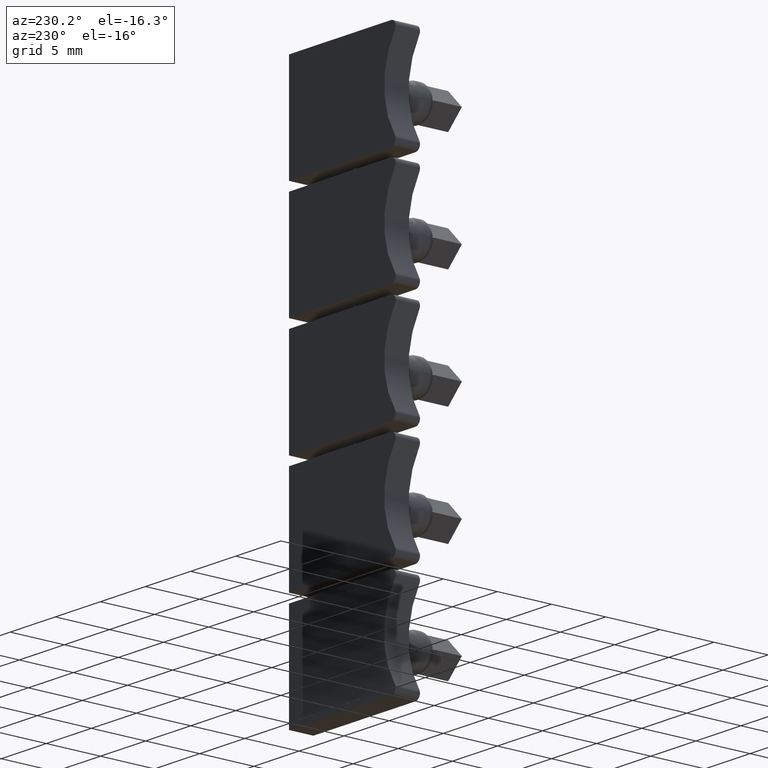
[diagram: clean part render]
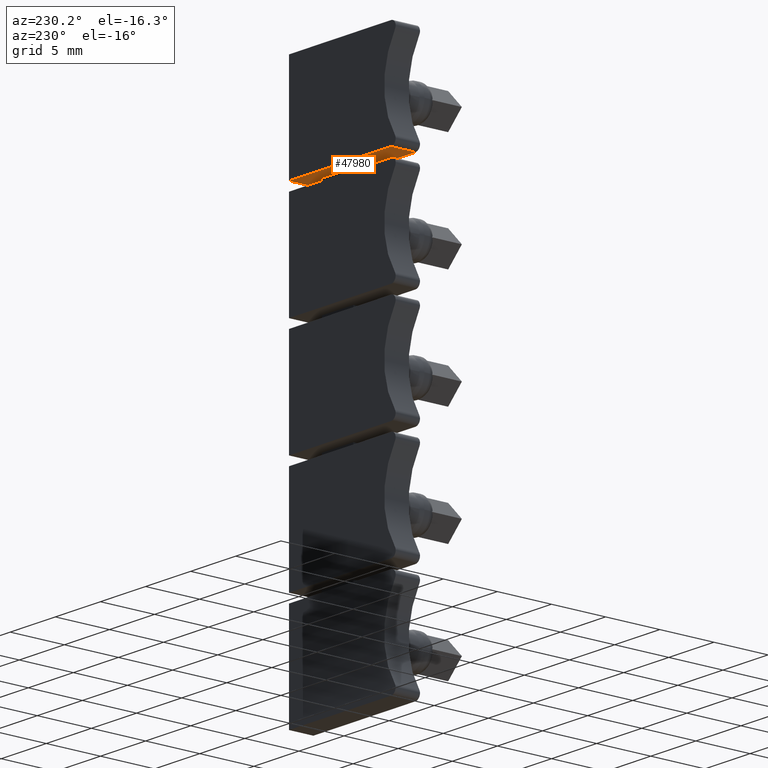
[diagram: same view with one face highlighted and labeled with its STEP entity id]
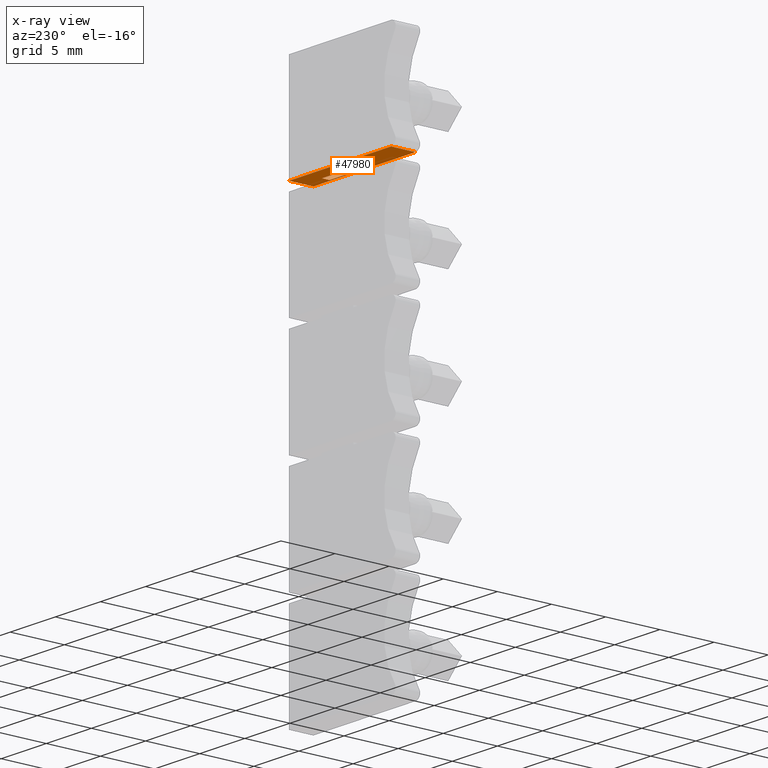
[diagram: x-ray of the same camera — body ghosted, the highlighted face saturated]
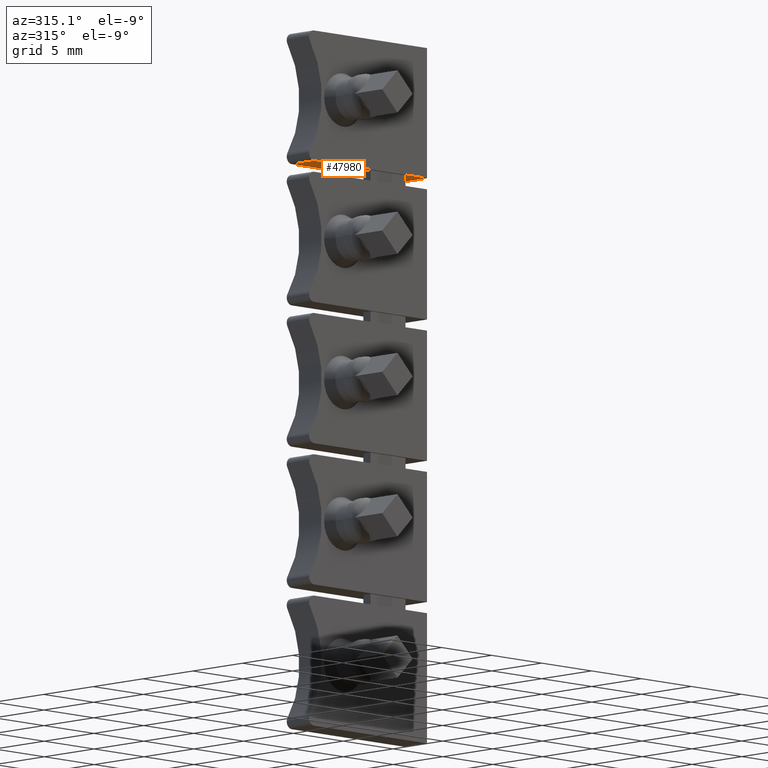
[diagram: same view with one face highlighted and labeled with its STEP entity id]
A machine part, auxiliary view. The second image highlights one B-rep face of the part: STEP entity #47980.
The next image is the same camera in x-ray: the body ghosted, the highlighted face saturated — about 0% of this face is hidden behind the body in this view.
A second angle (auxiliary view) of the same face is appended — the face is thin or edge-on in the first view.
In plain terms, the highlighted planar face has unit normal (0, -0, -1).
Its self-contained STEP definition (entity closure, byte-faithful):
#42920=CARTESIAN_POINT('',(-12.7216167420029,42.8120767804253,
51.0749999972799));
#42930=DIRECTION('',(-4.37360856649983E-12,-1.,0.));
#42940=VECTOR('',#42930,1.);
#42950=LINE('',#42920,#42940);
#42960=CARTESIAN_POINT('',(-12.721616741999,43.6954101153372,
51.0749999972799));
#42970=VERTEX_POINT('',#42960);
#42980=CARTESIAN_POINT('',(-12.7216167420021,42.9787434470838,
51.0749999972799));
#42990=VERTEX_POINT('',#42980);
#43000=EDGE_CURVE('',#42970,#42990,#42950,.T.);
#44760=CARTESIAN_POINT('',(-9.22161674199826,43.6954101153219,
51.0749999972799));
#44770=VERTEX_POINT('',#44760);
#44850=CARTESIAN_POINT('',(-9.2216167420014,42.9787434470685,
51.0749999972799));
#44860=VERTEX_POINT('',#44850);
#44890=CARTESIAN_POINT('',(-9.22161674200213,42.81207678041,
51.0749999972799));
#44900=DIRECTION('',(-4.37360856649983E-12,-1.,0.));
#44910=VECTOR('',#44900,1.);
#44920=LINE('',#44890,#44910);
#44930=EDGE_CURVE('',#44770,#44860,#44920,.T.);
#47430=CARTESIAN_POINT('',(-9.02416052900085,42.8120767804091,
51.0749999972799));
#47440=DIRECTION('',(0.,-0.,-1.));
#47450=DIRECTION('',(1.,-4.37360856649983E-12,0.));
#47460=AXIS2_PLACEMENT_3D('',#47430,#47440,#47450);
#47470=PLANE('',#47460);
#47480=ORIENTED_EDGE('',*,*,#44930,.F.);
#47490=CARTESIAN_POINT('',(-18.2837265971482,42.9787434471081,
51.0749999972799));
#47500=DIRECTION('',(1.,-4.37360856649983E-12,0.));
#47510=VECTOR('',#47500,1.);
#47520=LINE('',#47490,#47510);
#47530=EDGE_CURVE('',#42990,#44860,#47520,.T.);
#47540=ORIENTED_EDGE('',*,*,#47530,.T.);
#47550=ORIENTED_EDGE('',*,*,#43000,.T.);
#47560=CARTESIAN_POINT('',(-18.2837265971451,43.6954101153616,
51.0749999972799));
#47570=DIRECTION('',(-1.,4.37360856649983E-12,0.));
#47580=VECTOR('',#47570,1.);
#47590=LINE('',#47560,#47580);
#47600=EDGE_CURVE('',#44770,#42970,#47590,.T.);
#47610=ORIENTED_EDGE('',*,*,#47600,.T.);
#47620=EDGE_LOOP('',(#47610,#47550,#47540,#47480));
#47630=FACE_BOUND('',#47620,.T.);
#47640=CARTESIAN_POINT('',(-7.22161674200213,42.8120767804012,
51.0749999972799));
#47650=DIRECTION('',(-4.37360856649983E-12,-1.,0.));
#47660=VECTOR('',#47650,1.);
#47670=LINE('',#47640,#47660);
#47680=CARTESIAN_POINT('',(-7.22161674199229,45.0620767804012,
51.0749999972799));
#47690=VERTEX_POINT('',#47680);
#47700=CARTESIAN_POINT('',(-7.22161674200213,42.8120767804012,
51.0749999972799));
#47710=VERTEX_POINT('',#47700);
#47720=EDGE_CURVE('',#47690,#47710,#47670,.T.);
#47730=ORIENTED_EDGE('',*,*,#47720,.T.);
#47740=CARTESIAN_POINT('',(-18.2837265971391,45.0620767804496,
51.0749999972799));
#47750=DIRECTION('',(-1.,4.37360856649983E-12,0.));
#47760=VECTOR('',#47750,1.);
#47770=LINE('',#47740,#47760);
#47780=CARTESIAN_POINT('',(-18.5414452056821,45.0620767804508,
51.0749999972799));
#47790=VERTEX_POINT('',#47780);
#47800=EDGE_CURVE('',#47690,#47790,#47770,.T.);
#47810=ORIENTED_EDGE('',*,*,#47800,.F.);
#47820=CARTESIAN_POINT('',(-18.5414452057228,35.7630743805853,
51.0749999972799));
#47830=DIRECTION('',(4.37360856649983E-12,1.,0.));
#47840=VECTOR('',#47830,1.);
#47850=LINE('',#47820,#47840);
#47860=CARTESIAN_POINT('',(-18.541445205692,42.8120767804508,
51.0749999972799));
#47870=VERTEX_POINT('',#47860);
#47880=EDGE_CURVE('',#47870,#47790,#47850,.T.);
#47890=ORIENTED_EDGE('',*,*,#47880,.T.);
#47900=CARTESIAN_POINT('',(-18.2837265971489,42.8120767804496,
51.0749999972799));
#47910=DIRECTION('',(1.,-4.37360856649983E-12,0.));
#47920=VECTOR('',#47910,1.);
#47930=LINE('',#47900,#47920);
#47940=EDGE_CURVE('',#47870,#47710,#47930,.T.);
#47950=ORIENTED_EDGE('',*,*,#47940,.F.);
#47960=EDGE_LOOP('',(#47950,#47890,#47810,#47730));
#47970=FACE_OUTER_BOUND('',#47960,.T.);
#47980=ADVANCED_FACE('',(#47630,#47970),#47470,.T.);